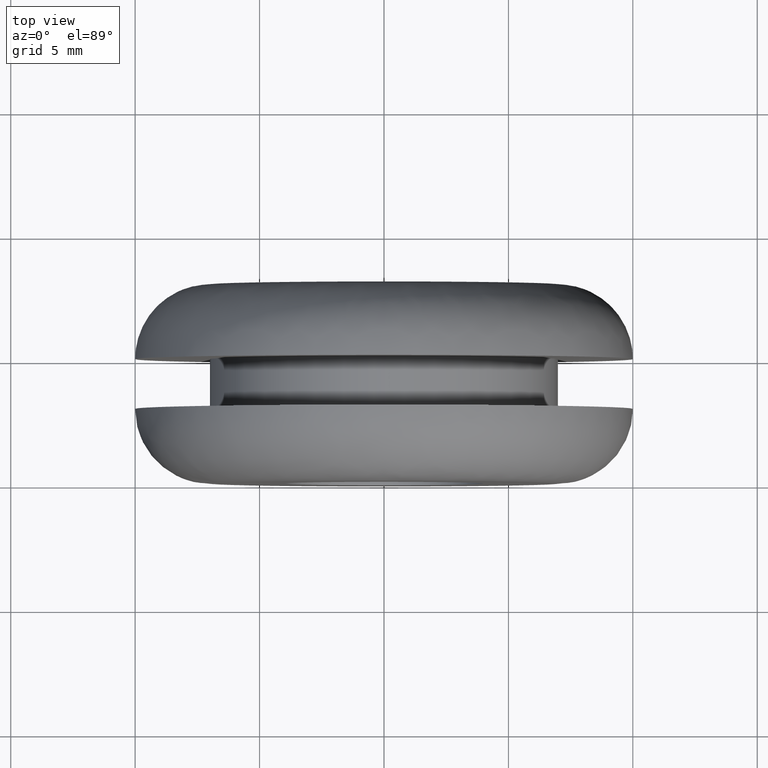
[diagram: clean part render]
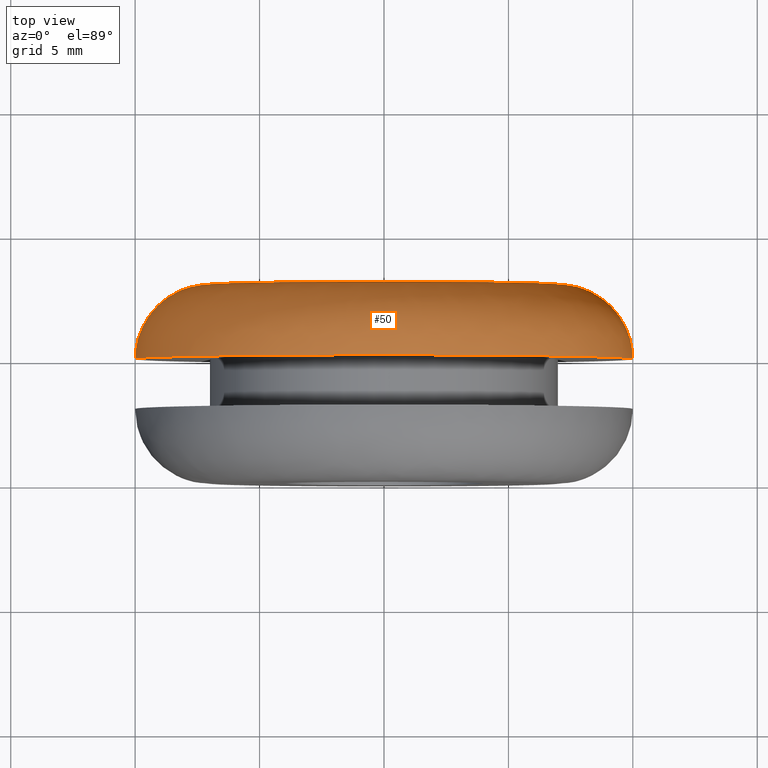
[diagram: same view with one face highlighted and labeled with its STEP entity id]
A machine part, top view. The second image highlights one B-rep face of the part: STEP entity #50.
In plain terms, the highlighted face is a freeform B-spline surface patch.
Its self-contained STEP definition (entity closure, byte-faithful):
#50=ADVANCED_FACE('',(#157),#156,.T.);
#156=( BOUNDED_SURFACE() B_SPLINE_SURFACE( 2,2,((#272,#273,#274,#275,#276),(#277,#278,#279,#280,#281),(#282,#283,#284,#285,#286),(#287,#288,#289,#290,#291),(#292,#293,#294,#295,#296)), .UNSPECIFIED.,.F.,.F.,.F.) B_SPLINE_SURFACE_WITH_KNOTS((3,2,3),(3,2,3),(-1.57079701149E+000,-1.04711990935E+000,2.32925527740E-004),(0.00000000000E+000,1.57079632679E+000,3.14159265359E+000), .UNSPECIFIED. ) GEOMETRIC_REPRESENTATION_ITEM() RATIONAL_B_SPLINE_SURFACE(((9.32993290127E-001,6.59725882250E-001,9.32993290127E-001,6.59725882250E-001,9.32993290127E-001),(9.32993202517E-001,6.59725820301E-001,9.32993202517E-001,6.59725820301E-001,9.32993202517E-001),(1.00000000000E+000,7.07106781187E-001,1.00000000000E+000,7.07106781187E-001,1.00000000000E+000),(8.65986580253E-001,6.12344983313E-001,8.65986580253E-001,6.12344983313E-001,8.65986580253E-001),(1.00000000000E+000,7.07106781187E-001,1.00000000000E+000,7.07106781187E-001,1.00000000000E+000))) REPRESENTATION_ITEM('') SURFACE() );
#157=FACE_OUTER_BOUND('',#297,.T.);
#272=CARTESIAN_POINT('',(-6.99999789766E+000,8.00000000000E+000,-4.43818416761E-016));
#273=CARTESIAN_POINT('',(-6.99999789766E+000,8.00000000000E+000,6.99999789766E+000));
#274=CARTESIAN_POINT('',(-1.43852894147E-013,8.00000000000E+000,6.99999789766E+000));
#275=CARTESIAN_POINT('',(6.99999789766E+000,8.00000000000E+000,6.99999789766E+000));
#276=CARTESIAN_POINT('',(6.99999789766E+000,8.00000000000E+000,-2.15826679720E-015));
#277=CARTESIAN_POINT('',(-7.80397142733E+000,8.00000056341E+000,-3.45363307487E-016));
#278=CARTESIAN_POINT('',(-7.80397142733E+000,8.00000056341E+000,7.80397142733E+000));
#279=CARTESIAN_POINT('',(-1.43754396007E-013,8.00000056341E+000,7.80397142733E+000));
#280=CARTESIAN_POINT('',(7.80397142733E+000,8.00000056341E+000,7.80397142733E+000));
#281=CARTESIAN_POINT('',(7.80397142733E+000,8.00000056341E+000,-2.25672190648E-015));
#282=CARTESIAN_POINT('',(-8.50020171490E+000,7.59795974076E+000,-2.60102504098E-016));
#283=CARTESIAN_POINT('',(-8.50020171490E+000,7.59795974076E+000,8.50020171490E+000));
#284=CARTESIAN_POINT('',(-1.74374706963E-013,7.59795974076E+000,8.50020171490E+000));
#285=CARTESIAN_POINT('',(8.50020171490E+000,7.59795974076E+000,8.50020171490E+000));
#286=CARTESIAN_POINT('',(8.50020171490E+000,7.59795974076E+000,-2.34198270987E-015));
#287=CARTESIAN_POINT('',(-1.00004034298E+001,6.73166256529E+000,-7.63868488899E-017));
#288=CARTESIAN_POINT('',(-1.00004034298E+001,6.73166256529E+000,1.00004034298E+001));
#289=CARTESIAN_POINT('',(-2.40353800124E-013,6.73166256529E+000,1.00004034298E+001));
#290=CARTESIAN_POINT('',(1.00004034298E+001,6.73166256529E+000,1.00004034298E+001));
#291=CARTESIAN_POINT('',(1.00004034298E+001,6.73166256529E+000,-2.52569836508E-015));
#292=CARTESIAN_POINT('',(-9.99999991862E+000,4.99930122342E+000,-7.64362631262E-017));
#293=CARTESIAN_POINT('',(-9.99999991862E+000,4.99930122342E+000,9.99999991862E+000));
#294=CARTESIAN_POINT('',(-3.72661671276E-013,4.99930122342E+000,9.99999991862E+000));
#295=CARTESIAN_POINT('',(9.99999991862E+000,4.99930122342E+000,9.99999991862E+000));
#296=CARTESIAN_POINT('',(9.99999991862E+000,4.99930122342E+000,-2.52564895084E-015));
#297=EDGE_LOOP('',(#386,#387,#388,#389,#390));
#386=ORIENTED_EDGE('',*,*,#407,.T.);
#387=ORIENTED_EDGE('',*,*,#433,.T.);
#388=ORIENTED_EDGE('',*,*,#401,.F.);
#389=ORIENTED_EDGE('',*,*,#400,.F.);
#390=ORIENTED_EDGE('',*,*,#434,.F.);
#400=EDGE_CURVE('',#443,#450,#451,.T.);
#401=EDGE_CURVE('',#450,#457,#458,.T.);
#407=EDGE_CURVE('',#499,#491,#500,.T.);
#433=EDGE_CURVE('',#491,#457,#674,.T.);
#434=EDGE_CURVE('',#499,#443,#680,.T.);
#443=VERTEX_POINT('',#692);
#450=VERTEX_POINT('',#697);
#451=CIRCLE('',#701,1.00000000000E+001);
#457=VERTEX_POINT('',#702);
#458=CIRCLE('',#706,1.00000000000E+001);
#491=VERTEX_POINT('',#726);
#499=VERTEX_POINT('',#732);
#500=CIRCLE('',#736,7.00000000836E+000);
#674=(BOUNDED_CURVE() B_SPLINE_CURVE(2,(#847,#848,#849,#850,#851),.UNSPECIFIED.,.F.,.F.) B_SPLINE_CURVE_WITH_KNOTS((3,2,3),(-1.57079631639E+000,-1.04711990935E+000,-1.02800257112E-005),.UNSPECIFIED.) CURVE() GEOMETRIC_REPRESENTATION_ITEM() RATIONAL_B_SPLINE_CURVE((9.32993290126E-001,9.32993291458E-001,1.00000000000E+000,8.66017699477E-001,9.99937776004E-001)) REPRESENTATION_ITEM('') );
#680=(BOUNDED_CURVE() B_SPLINE_CURVE(2,(#852,#853,#854,#855,#856),.UNSPECIFIED.,.F.,.F.) B_SPLINE_CURVE_WITH_KNOTS((3,2,3),(-1.57079701149E+000,-1.04711990935E+000,2.32925527740E-004),.UNSPECIFIED.) CURVE() GEOMETRIC_REPRESENTATION_ITEM() RATIONAL_B_SPLINE_CURVE((9.32993290127E-001,9.32993202517E-001,1.00000000000E+000,8.65986580253E-001,1.00000000000E+000)) REPRESENTATION_ITEM('') );
#692=CARTESIAN_POINT('',(9.99999999999E+000,4.99999800073E+000,1.08765567577E-005));
#697=CARTESIAN_POINT('',(0.00000000000E+000,5.00000000000E+000,1.00000000000E+001));
#698=CARTESIAN_POINT('',(-3.73034936274E-013,4.99999894246E+000,2.71249689376E-012));
#699=DIRECTION('',(-9.41729651498E-008,-1.00000000000E+000,1.05753828768E-007));
#700=DIRECTION('',(-9.93311709961E-001,1.05753828628E-007,1.15463617013E-001));
#701=AXIS2_PLACEMENT_3D('',#698,#699,#700);
#702=CARTESIAN_POINT('',(-1.00000000000E+001,4.99999795693E+000,1.31552490000E-008));
#703=CARTESIAN_POINT('',(3.32178728968E-013,4.99999897846E+000,1.05870867628E-012));
#704=DIRECTION('',(1.02153652483E-007,-1.00000000000E+000,1.02153652115E-007));
#705=DIRECTION('',(3.32178728968E-014,-1.02153652115E-007,-1.00000000000E+000));
#706=AXIS2_PLACEMENT_3D('',#703,#704,#705);
#726=CARTESIAN_POINT('',(-7.00000001214E+000,8.00000000000E+000,-1.06121232557E-007));
#732=CARTESIAN_POINT('',(7.00000000457E+000,8.00000000000E+000,2.67600900346E-008));
#733=CARTESIAN_POINT('',(-3.78966591441E-009,8.00000000000E+000,-8.35507263375E-009));
#734=DIRECTION('',(2.64164725180E-016,-1.00000000000E+000,2.27254708015E-015));
#735=DIRECTION('',(5.41380662522E-010,-2.27254708001E-015,-1.00000000000E+000));
#736=AXIS2_PLACEMENT_3D('',#733,#734,#735);
#847=CARTESIAN_POINT('',(-7.00000003195E+000,8.00000000000E+000,-4.43818155395E-016));
#848=CARTESIAN_POINT('',(-7.80397241783E+000,7.99999999144E+000,-3.45363186189E-016));
#849=CARTESIAN_POINT('',(-8.50020171490E+000,7.59795974076E+000,-2.60102504098E-016));
#850=CARTESIAN_POINT('',(-1.00000011730E+001,6.73189484999E+000,-7.64361095098E-017));
#851=CARTESIAN_POINT('',(-1.00000000000E+001,4.99999796807E+000,-7.64362531603E-017));
#852=CARTESIAN_POINT('',(6.99999789766E+000,8.00000000000E+000,-2.15826679720E-015));
#853=CARTESIAN_POINT('',(7.80397142733E+000,8.00000056341E+000,-2.25672190648E-015));
#854=CARTESIAN_POINT('',(8.50020171490E+000,7.59795974076E+000,-2.34198270987E-015));
#855=CARTESIAN_POINT('',(1.00004034298E+001,6.73166256529E+000,-2.52569836508E-015));
#856=CARTESIAN_POINT('',(9.99999991862E+000,4.99930122342E+000,-2.52564895084E-015));